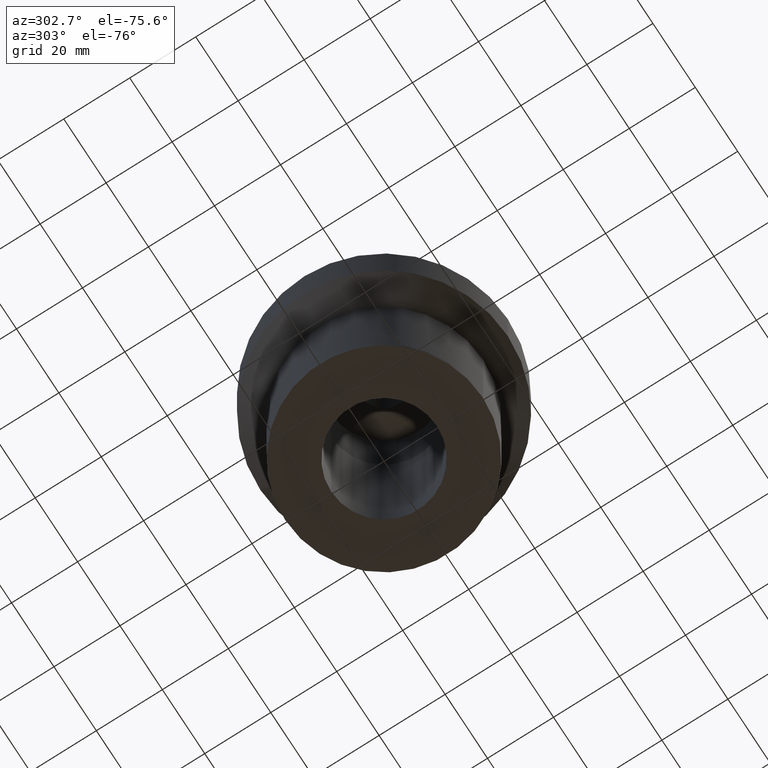
[diagram: clean part render]
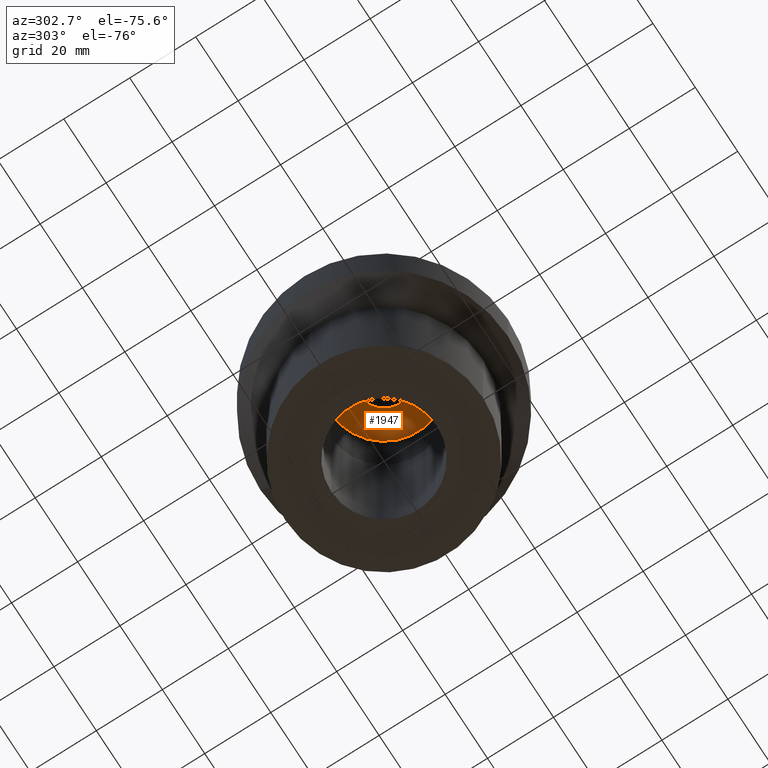
[diagram: same view with one face highlighted and labeled with its STEP entity id]
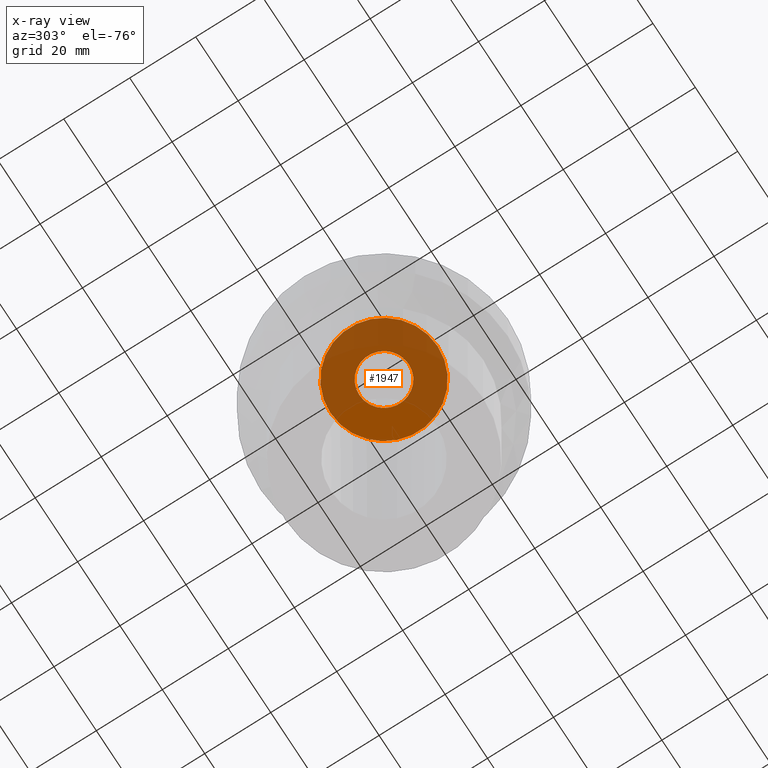
[diagram: x-ray of the same camera — body ghosted, the highlighted face saturated]
A machine part, auxiliary view. The second image highlights one B-rep face of the part: STEP entity #1947.
The next image is the same camera in x-ray: the body ghosted, the highlighted face saturated — about 73% of this face is hidden behind the body in this view.
In plain terms, the highlighted planar face has unit normal (0, 0, -1).
Its self-contained STEP definition (entity closure, byte-faithful):
#903=CARTESIAN_POINT('',(0.E0,0.E0,-2.38E1));
#904=DIRECTION('',(0.E0,0.E0,1.E0));
#905=DIRECTION('',(0.E0,-1.E0,0.E0));
#906=AXIS2_PLACEMENT_3D('',#903,#904,#905);
#911=CARTESIAN_POINT('',(0.E0,0.E0,-2.38E1));
#912=DIRECTION('',(0.E0,0.E0,1.E0));
#913=DIRECTION('',(0.E0,1.E0,0.E0));
#914=AXIS2_PLACEMENT_3D('',#911,#912,#913);
#919=CARTESIAN_POINT('',(0.E0,0.E0,-2.38E1));
#920=DIRECTION('',(0.E0,0.E0,-1.E0));
#921=DIRECTION('',(0.E0,-1.E0,0.E0));
#922=AXIS2_PLACEMENT_3D('',#919,#920,#921);
#927=CARTESIAN_POINT('',(0.E0,0.E0,-2.38E1));
#928=DIRECTION('',(0.E0,0.E0,-1.E0));
#929=DIRECTION('',(0.E0,1.E0,0.E0));
#930=AXIS2_PLACEMENT_3D('',#927,#928,#929);
#1119=CARTESIAN_POINT('',(0.E0,7.5E0,-2.38E1));
#1120=VERTEX_POINT('',#1119);
#1121=CARTESIAN_POINT('',(0.E0,-7.5E0,-2.38E1));
#1122=VERTEX_POINT('',#1121);
#1123=CARTESIAN_POINT('',(0.E0,-1.625E1,-2.38E1));
#1124=CARTESIAN_POINT('',(0.E0,1.625E1,-2.38E1));
#1125=VERTEX_POINT('',#1123);
#1126=VERTEX_POINT('',#1124);
#1932=CARTESIAN_POINT('',(0.E0,0.E0,-2.38E1));
#1933=DIRECTION('',(0.E0,0.E0,-1.E0));
#1934=DIRECTION('',(0.E0,-1.E0,0.E0));
#1935=AXIS2_PLACEMENT_3D('',#1932,#1933,#1934);
#1936=PLANE('',#1935);
#1937=ORIENTED_EDGE('',*,*,#1925,.T.);
#1938=ORIENTED_EDGE('',*,*,#1914,.T.);
#1939=EDGE_LOOP('',(#1937,#1938));
#1940=FACE_OUTER_BOUND('',#1939,.F.);
#1942=ORIENTED_EDGE('',*,*,#1941,.T.);
#1944=ORIENTED_EDGE('',*,*,#1943,.T.);
#1945=EDGE_LOOP('',(#1942,#1944));
#1946=FACE_BOUND('',#1945,.F.);
#907=CIRCLE('',#906,1.625E1);
#915=CIRCLE('',#914,1.625E1);
#923=CIRCLE('',#922,7.5E0);
#931=CIRCLE('',#930,7.5E0);
#1914=EDGE_CURVE('',#1126,#1125,#915,.T.);
#1925=EDGE_CURVE('',#1125,#1126,#907,.T.);
#1941=EDGE_CURVE('',#1122,#1120,#923,.T.);
#1943=EDGE_CURVE('',#1120,#1122,#931,.T.);
#1947=ADVANCED_FACE('',(#1940,#1946),#1936,.T.);